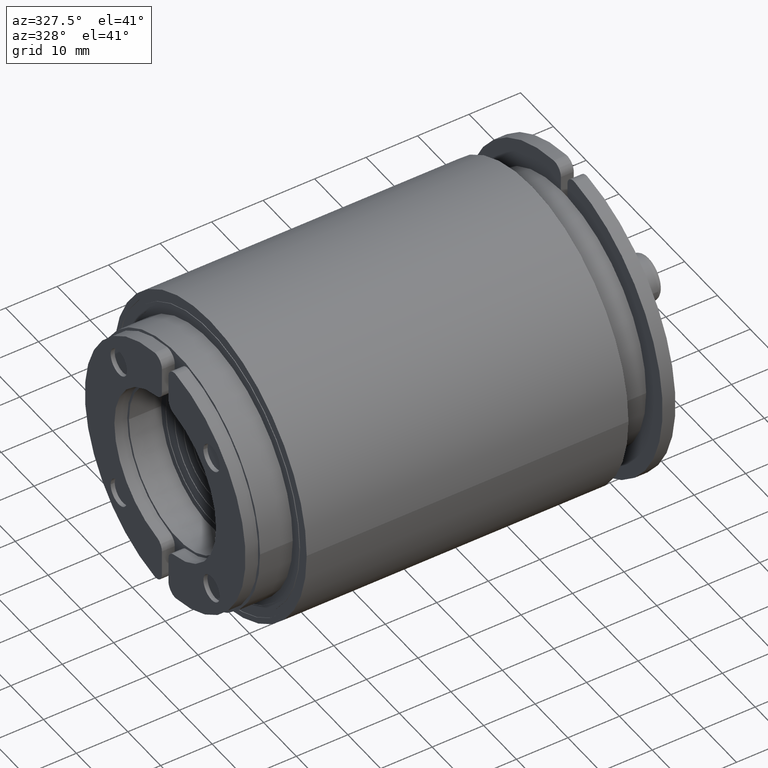
[diagram: clean part render]
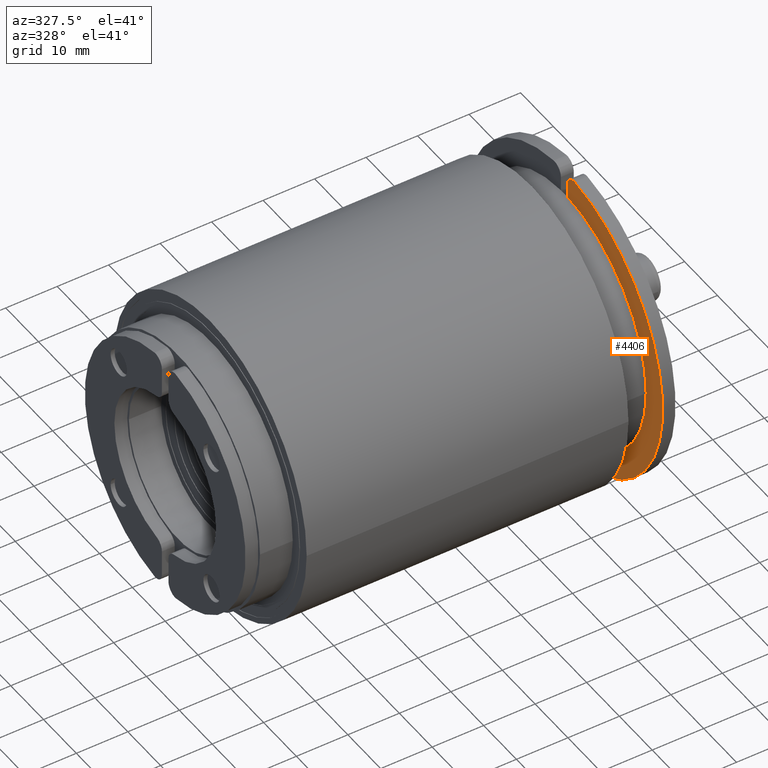
[diagram: same view with one face highlighted and labeled with its STEP entity id]
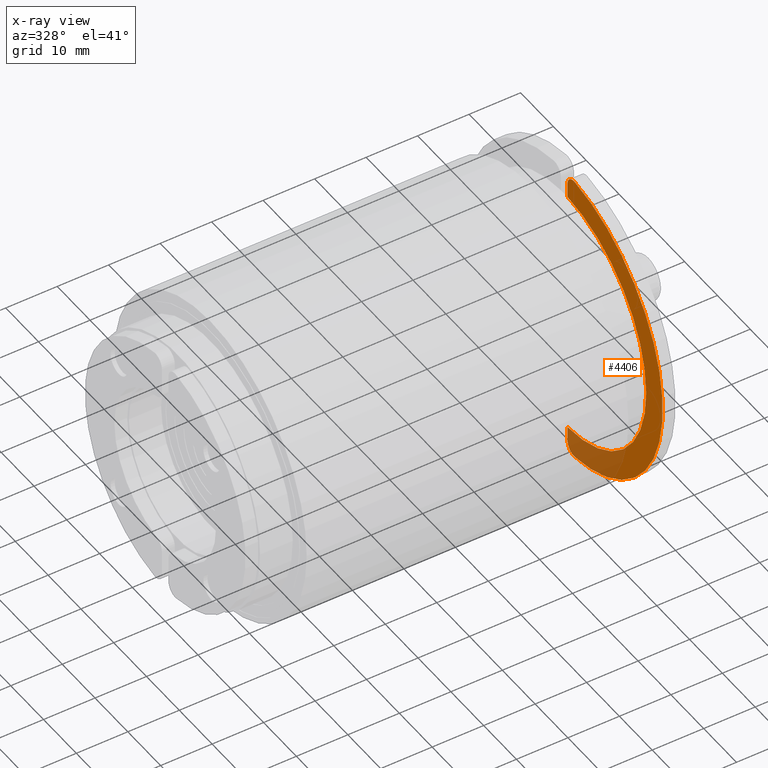
[diagram: x-ray of the same camera — body ghosted, the highlighted face saturated]
A machine part, auxiliary view. The second image highlights one B-rep face of the part: STEP entity #4406.
The next image is the same camera in x-ray: the body ghosted, the highlighted face saturated — about 21% of this face is hidden behind the body in this view.
In plain terms, the highlighted planar face has unit normal (1, 0, 0).
Its self-contained STEP definition (entity closure, byte-faithful):
#1183=CARTESIAN_POINT('',(37.500000000000000,-1.663693790437885,-29.326869432435799));
#1184=VERTEX_POINT('',#1183);
#1193=CARTESIAN_POINT('',(37.500000000000000,-1.000000000000003,-27.838821814150112));
#1194=VERTEX_POINT('',#1193);
#1195=CARTESIAN_POINT('',(37.500000000000000,-3.000000000000009,-27.838821814150112));
#1196=DIRECTION('',(1.0,0.0,0.0));
#1197=DIRECTION('',(0.0,0.668153104781063,-0.744023809142843));
#1198=AXIS2_PLACEMENT_3D('',#1195,#1196,#1197);
#1199=CIRCLE('',#1198,2.0);
#1200=EDGE_CURVE('',#1184,#1194,#1199,.T.);
#1225=CARTESIAN_POINT('',(37.500000000000000,-1.663693790437878,29.326869432435799));
#1226=VERTEX_POINT('',#1225);
#1235=CARTESIAN_POINT('',(37.500000000000000,-3.214285714285712,29.827309086589402));
#1236=VERTEX_POINT('',#1235);
#1237=CARTESIAN_POINT('',(37.500000000000000,-2.999999999999997,27.838821814150108));
#1238=DIRECTION('',(1.0,0.0,0.0));
#1239=DIRECTION('',(0.0,0.668153104781060,0.744023809142846));
#1240=AXIS2_PLACEMENT_3D('',#1237,#1238,#1239);
#1241=CIRCLE('',#1240,2.0);
#1242=EDGE_CURVE('',#1226,#1236,#1241,.T.);
#2044=CARTESIAN_POINT('',(37.500000000000000,-25.0,3.061516E-015));
#2045=VERTEX_POINT('',#2044);
#2078=CARTESIAN_POINT('',(37.500000000000000,-1.000000000000003,-24.979991993593593));
#2079=VERTEX_POINT('',#2078);
#2087=CARTESIAN_POINT('',(37.500000000000000,0.0,0.0));
#2088=DIRECTION('',(-1.0,0.0,0.0));
#2089=DIRECTION('',(0.0,-1.0,0.0));
#2090=AXIS2_PLACEMENT_3D('',#2087,#2088,#2089);
#2091=CIRCLE('',#2090,25.0);
#2092=EDGE_CURVE('',#2079,#2045,#2091,.T.);
#2689=CARTESIAN_POINT('',(37.500000000000000,-0.999999999999997,24.979991993593593));
#2690=VERTEX_POINT('',#2689);
#2691=CARTESIAN_POINT('',(37.500000000000000,0.0,0.0));
#2692=DIRECTION('',(-1.0,0.0,0.0));
#2693=DIRECTION('',(0.0,-1.0,0.0));
#2694=AXIS2_PLACEMENT_3D('',#2691,#2692,#2693);
#2695=CIRCLE('',#2694,25.0);
#2696=EDGE_CURVE('',#2045,#2690,#2695,.T.);
#4202=CARTESIAN_POINT('',(37.500000000000000,-1.000000000000003,-27.838821814150112));
#4203=DIRECTION('',(0.0,0.0,1.0));
#4204=VECTOR('',#4203,2.858829820556519);
#4205=LINE('',#4202,#4204);
#4206=EDGE_CURVE('',#1194,#2079,#4205,.T.);
#4323=CARTESIAN_POINT('',(37.500000000000000,-0.999999999999997,27.838821814150101));
#4324=VERTEX_POINT('',#4323);
#4325=CARTESIAN_POINT('',(37.500000000000000,-0.999999999999997,24.979991993593593));
#4326=DIRECTION('',(0.0,0.0,1.0));
#4327=VECTOR('',#4326,2.858829820556508);
#4328=LINE('',#4325,#4327);
#4329=EDGE_CURVE('',#2690,#4324,#4328,.T.);
#4349=CARTESIAN_POINT('',(37.500000000000000,-2.999999999999997,27.838821814150108));
#4350=DIRECTION('',(1.0,0.0,0.0));
#4351=DIRECTION('',(0.0,0.668153104781060,0.744023809142846));
#4352=AXIS2_PLACEMENT_3D('',#4349,#4350,#4351);
#4353=CIRCLE('',#4352,2.0);
#4354=EDGE_CURVE('',#4324,#1226,#4353,.T.);
#4365=CARTESIAN_POINT('',(37.500000000000000,-3.214285714285724,-29.827309086589402));
#4366=VERTEX_POINT('',#4365);
#4367=CARTESIAN_POINT('',(37.500000000000000,0.0,0.0));
#4368=DIRECTION('',(1.0,0.0,0.0));
#4369=DIRECTION('',(0.0,-0.033333333333333,0.999444290037663));
#4370=AXIS2_PLACEMENT_3D('',#4367,#4368,#4369);
#4371=CIRCLE('',#4370,30.0);
#4372=EDGE_CURVE('',#1236,#4366,#4371,.T.);
#4384=CARTESIAN_POINT('',(37.500000000000000,-12.483135775353807,2.916472E-015));
#4385=DIRECTION('',(1.0,0.0,0.0));
#4386=DIRECTION('',(0.0,0.0,1.0));
#4387=AXIS2_PLACEMENT_3D('',#4384,#4385,#4386);
#4388=PLANE('',#4387);
#4389=ORIENTED_EDGE('',*,*,#4354,.F.);
#4390=ORIENTED_EDGE('',*,*,#4329,.F.);
#4391=ORIENTED_EDGE('',*,*,#2696,.F.);
#4392=ORIENTED_EDGE('',*,*,#2092,.F.);
#4393=ORIENTED_EDGE('',*,*,#4206,.F.);
#4394=ORIENTED_EDGE('',*,*,#1200,.F.);
#4395=CARTESIAN_POINT('',(37.500000000000000,-3.000000000000009,-27.838821814150112));
#4396=DIRECTION('',(1.0,0.0,0.0));
#4397=DIRECTION('',(0.0,0.668153104781063,-0.744023809142843));
#4398=AXIS2_PLACEMENT_3D('',#4395,#4396,#4397);
#4399=CIRCLE('',#4398,2.0);
#4400=EDGE_CURVE('',#4366,#1184,#4399,.T.);
#4401=ORIENTED_EDGE('',*,*,#4400,.F.);
#4402=ORIENTED_EDGE('',*,*,#4372,.F.);
#4403=ORIENTED_EDGE('',*,*,#1242,.F.);
#4404=EDGE_LOOP('',(#4389,#4390,#4391,#4392,#4393,#4394,#4401,#4402,#4403));
#4405=FACE_OUTER_BOUND('',#4404,.T.);
#4406=ADVANCED_FACE('',(#4405),#4388,.F.);